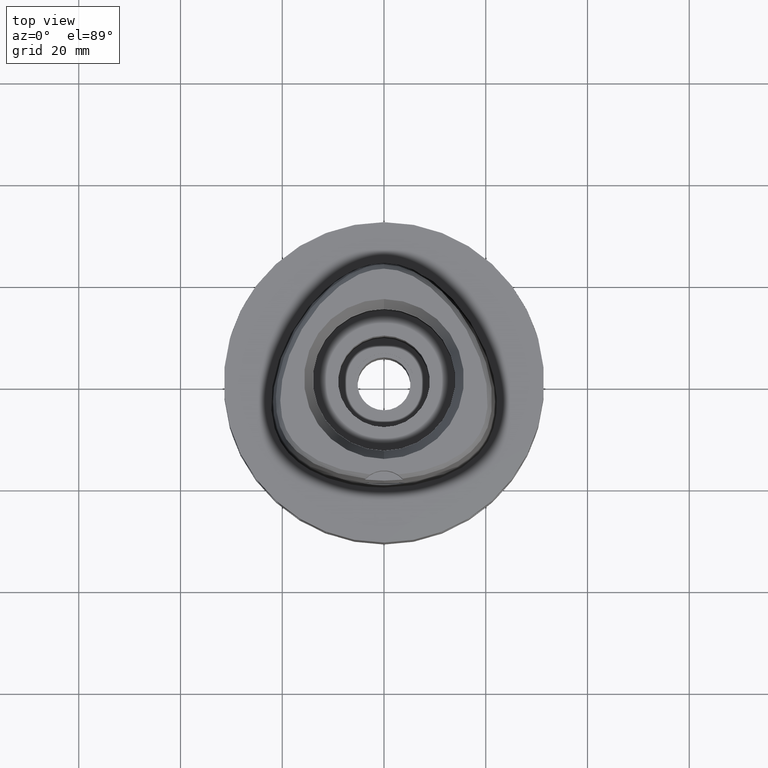
[diagram: clean part render]
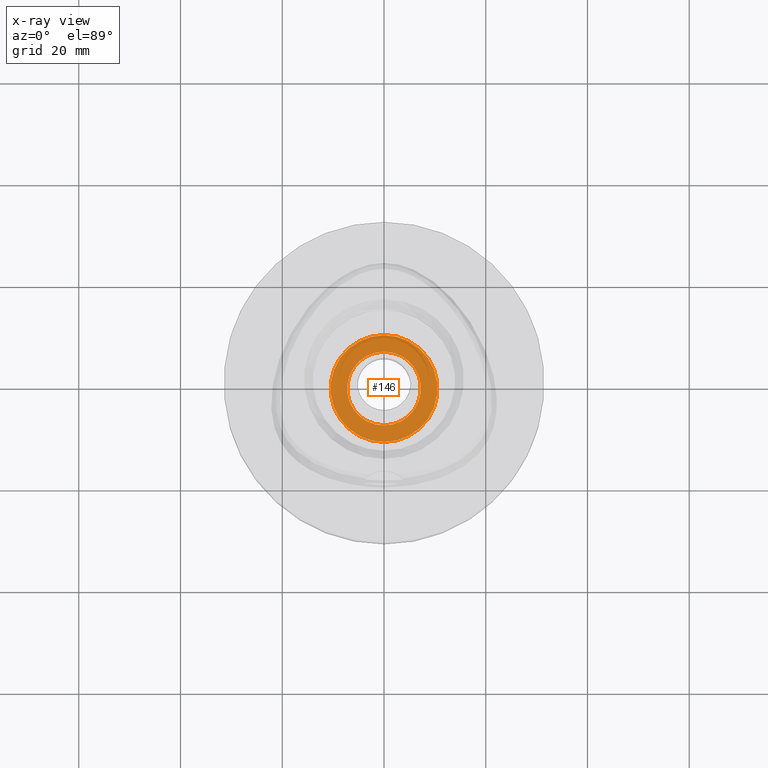
[diagram: x-ray — body ghosted, one internal face saturated and labeled with its STEP entity id]
A machine part, top view, then the same camera in x-ray: the body is ghosted and one INTERNAL B-rep face — a face not visible from any outside direction — is saturated and labeled: STEP entity #146.
In plain terms, the highlighted planar face has unit normal (0, 0, -1).
Its self-contained STEP definition (entity closure, byte-faithful):
#64 = CARTESIAN_POINT ( 'NONE',  ( 0.0000000000000000000, 0.0000000000000000000, -8.200000000000001066 ) ) ;
#146 = ADVANCED_FACE ( 'NONE', ( #2409, #4997 ), #3652, .F. ) ;
#351 = CARTESIAN_POINT ( 'NONE',  ( 0.0000000000000000000, 0.0000000000000000000, -8.200000000000001066 ) ) ;
#373 = DIRECTION ( 'NONE',  ( 0.0000000000000000000, 1.000000000000000000, 0.0000000000000000000 ) ) ;
#386 = CARTESIAN_POINT ( 'NONE',  ( 0.0000000000000000000, 10.50000000000000000, -8.200000000000001066 ) ) ;
#465 = VERTEX_POINT ( 'NONE', #3866 ) ;
#506 = ORIENTED_EDGE ( 'NONE', *, *, #5435, .F. ) ;
#556 = VERTEX_POINT ( 'NONE', #386 ) ;
#667 = CIRCLE ( 'NONE', #3927, 7.250000000000000000 ) ;
#935 = CIRCLE ( 'NONE', #1638, 7.250000000000000000 ) ;
#1127 = EDGE_LOOP ( 'NONE', ( #2912, #506 ) ) ;
#1460 = AXIS2_PLACEMENT_3D ( 'NONE', #351, #5009, #373 ) ;
#1566 = DIRECTION ( 'NONE',  ( 0.0000000000000000000, -1.000000000000000000, 0.0000000000000000000 ) ) ;
#1631 = AXIS2_PLACEMENT_3D ( 'NONE', #2365, #2780, #1566 ) ;
#1634 = DIRECTION ( 'NONE',  ( 0.0000000000000000000, -1.000000000000000000, 0.0000000000000000000 ) ) ;
#1638 = AXIS2_PLACEMENT_3D ( 'NONE', #64, #3454, #2122 ) ;
#1642 = ORIENTED_EDGE ( 'NONE', *, *, #3540, .F. ) ;
#1712 = VERTEX_POINT ( 'NONE', #3572 ) ;
#1930 = CARTESIAN_POINT ( 'NONE',  ( 0.0000000000000000000, 0.0000000000000000000, -8.200000000000001066 ) ) ;
#2122 = DIRECTION ( 'NONE',  ( 0.0000000000000000000, -1.000000000000000000, 0.0000000000000000000 ) ) ;
#2365 = CARTESIAN_POINT ( 'NONE',  ( 0.0000000000000000000, 0.0000000000000000000, -8.200000000000001066 ) ) ;
#2409 = FACE_OUTER_BOUND ( 'NONE', #1127, .T. ) ;
#2598 = CIRCLE ( 'NONE', #1460, 10.50000000000000000 ) ;
#2733 = EDGE_CURVE ( 'NONE', #556, #5033, #2598, .T. ) ;
#2780 = DIRECTION ( 'NONE',  ( 0.0000000000000000000, 0.0000000000000000000, -1.000000000000000000 ) ) ;
#2912 = ORIENTED_EDGE ( 'NONE', *, *, #2733, .F. ) ;
#3046 = ORIENTED_EDGE ( 'NONE', *, *, #3368, .F. ) ;
#3186 = CARTESIAN_POINT ( 'NONE',  ( 0.0000000000000000000, -10.50000000000000000, -8.200000000000001066 ) ) ;
#3215 = EDGE_LOOP ( 'NONE', ( #3046, #1642 ) ) ;
#3368 = EDGE_CURVE ( 'NONE', #1712, #465, #667, .T. ) ;
#3454 = DIRECTION ( 'NONE',  ( 0.0000000000000000000, 0.0000000000000000000, 1.000000000000000000 ) ) ;
#3540 = EDGE_CURVE ( 'NONE', #465, #1712, #935, .T. ) ;
#3572 = CARTESIAN_POINT ( 'NONE',  ( 0.0000000000000000000, 7.250000000000000000, -8.200000000000001066 ) ) ;
#3652 = PLANE ( 'NONE',  #4130 ) ;
#3866 = CARTESIAN_POINT ( 'NONE',  ( 0.0000000000000000000, -7.250000000000000000, -8.200000000000001066 ) ) ;
#3927 = AXIS2_PLACEMENT_3D ( 'NONE', #1930, #4033, #5232 ) ;
#4022 = CIRCLE ( 'NONE', #1631, 10.50000000000000000 ) ;
#4033 = DIRECTION ( 'NONE',  ( 0.0000000000000000000, 0.0000000000000000000, 1.000000000000000000 ) ) ;
#4076 = DIRECTION ( 'NONE',  ( 0.0000000000000000000, 0.0000000000000000000, -1.000000000000000000 ) ) ;
#4130 = AXIS2_PLACEMENT_3D ( 'NONE', #5403, #4076, #1634 ) ;
#4997 = FACE_BOUND ( 'NONE', #3215, .T. ) ;
#5009 = DIRECTION ( 'NONE',  ( 0.0000000000000000000, 0.0000000000000000000, -1.000000000000000000 ) ) ;
#5033 = VERTEX_POINT ( 'NONE', #3186 ) ;
#5232 = DIRECTION ( 'NONE',  ( 0.0000000000000000000, 1.000000000000000000, 0.0000000000000000000 ) ) ;
#5403 = CARTESIAN_POINT ( 'NONE',  ( 0.0000000000000000000, 0.0000000000000000000, -8.200000000000001066 ) ) ;
#5435 = EDGE_CURVE ( 'NONE', #5033, #556, #4022, .T. ) ;